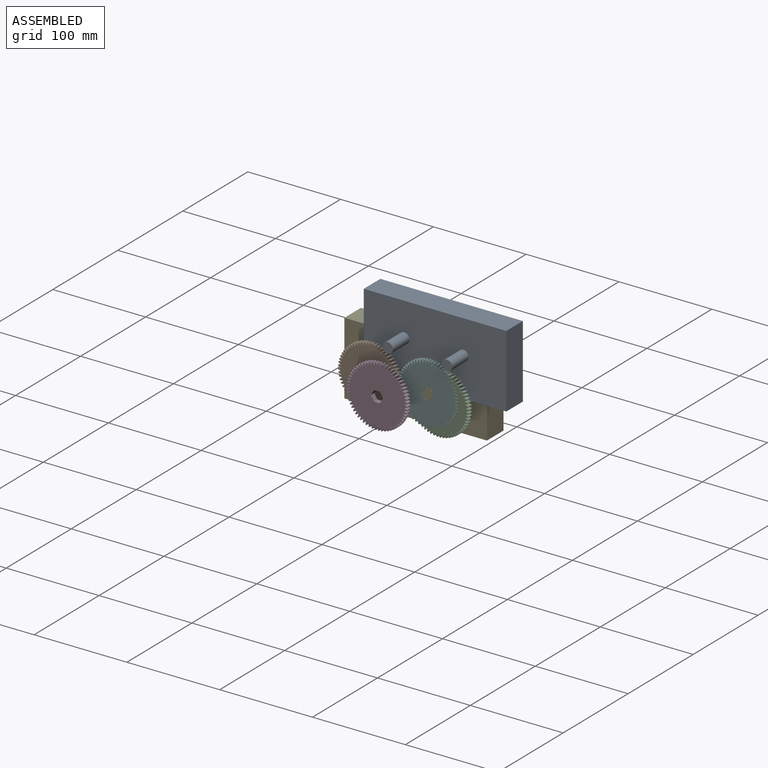
[diagram: assembled view]
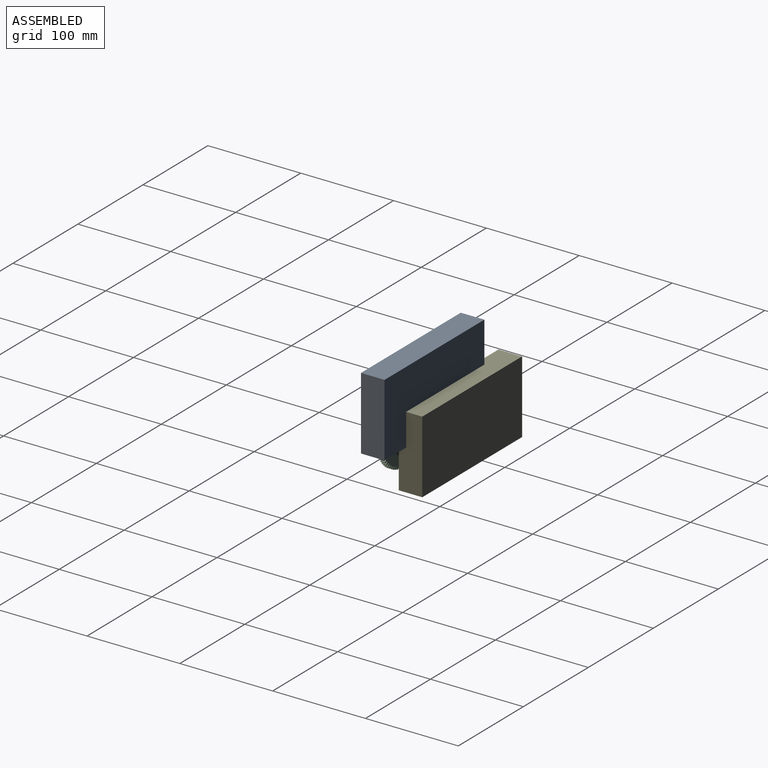
[diagram: assembled view, second angle]
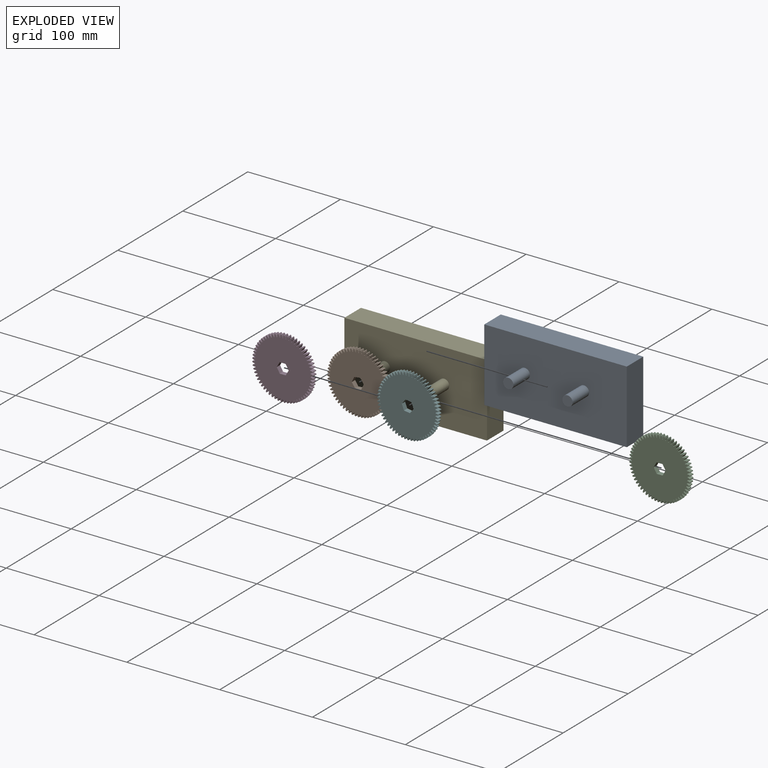
[diagram: exploded view]
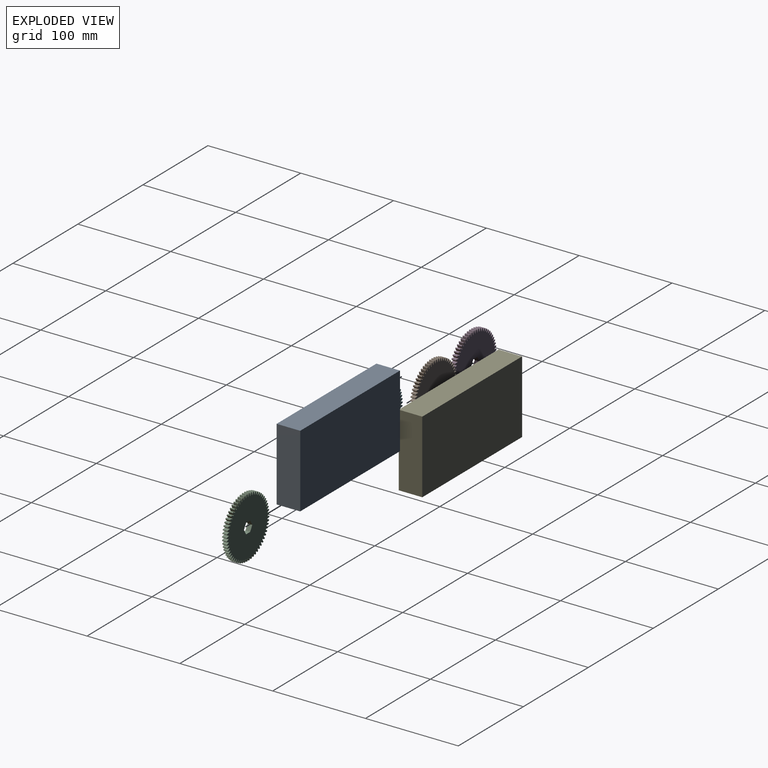
[diagram: exploded view, second angle]
ASSEMBLY  parts=3 mates=2
PART A: 368 faces, bbox 65.6x5.1x65.6 mm
  f0: extruded ~5.08x2.75mm, area 14.8mm2, adj f239,f240,f241,f242
  f1: cylinder r=29.84mm len=5.08mm, axis (0,1,0), area 1.3mm2, adj f240,f241,f242,f243
  f2: extruded ~5.08x2.75mm, area 14.8mm2, adj f3,f240,f241,f243
  f3: cylinder r=32.81mm len=5.08mm, axis (0,1,0), area 4.2mm2, adj f2,f4,f240,f241
  f4: extruded ~5.08x2.84mm, area 14.8mm2, adj f3,f240,f241,f244
  f5: cylinder r=29.84mm len=5.08mm, axis (0,1,0), area 1.3mm2, adj f240,f241,f244,f245
  f6: extruded ~5.08x2.64mm, area 14.8mm2, adj f7,f240,f241,f245
  f7: cylinder r=32.81mm len=5.08mm, axis (0,1,0), area 4.2mm2, adj f6,f8,f240,f241
  f8: extruded ~5.08x2.89mm, area 14.8mm2, adj f7,f240,f241,f246
  f9: cylinder r=29.84mm len=5.08mm, axis (0,1,0), area 1.3mm2, adj f240,f241,f246,f247
  f10: extruded ~5.08x2.49mm, area 14.8mm2, adj f11,f240,f241,f247
  f11: cylinder r=32.81mm len=5.08mm, axis (0,1,0), area 4.2mm2, adj f10,f12,f240,f241
  f12: extruded ~5.08x2.91mm, area 14.8mm2, adj f11,f240,f241,f248
  f13: cylinder r=29.84mm len=5.08mm, axis (0,1,0), area 1.3mm2, adj f240,f241,f248,f249
  f14: extruded ~5.08x2.32mm, area 14.8mm2, adj f15,f240,f241,f249
  f15: cylinder r=32.81mm len=5.08mm, axis (0,1,0), area 4.2mm2, adj f14,f16,f240,f241
  f16: extruded ~5.08x2.9mm, area 14.8mm2, adj f15,f240,f241,f250
  f17: cylinder r=29.84mm len=5.08mm, axis (0,1,0), area 1.3mm2, adj f240,f241,f250,f251
  f18: extruded ~5.08x2.13mm, area 14.8mm2, adj f19,f240,f241,f251
  f19: cylinder r=32.81mm len=5.08mm, axis (0,1,0), area 4.2mm2, adj f18,f20,f240,f241
  f20: extruded ~5.08x2.86mm, area 14.8mm2, adj f19,f240,f241,f252
  f21: cylinder r=29.84mm len=5.08mm, axis (0,1,0), area 1.3mm2, adj f240,f241,f252,f253
  f22: extruded ~5.08x2.2mm, area 14.8mm2, adj f23,f240,f241,f253
  f23: cylinder r=32.81mm len=5.08mm, axis (0,1,0), area 4.2mm2, adj f22,f24,f240,f241
  f24: extruded ~5.08x2.78mm, area 14.8mm2, adj f23,f240,f241,f254
  f25: cylinder r=29.84mm len=5.08mm, axis (0,1,0), area 1.3mm2, adj f240,f241,f254,f255
  f26: extruded ~5.08x2.38mm, area 14.8mm2, adj f27,f240,f241,f255
  f27: cylinder r=32.81mm len=5.08mm, axis (0,1,0), area 4.2mm2, adj f26,f28,f240,f241
  f28: extruded ~5.08x2.68mm, area 14.8mm2, adj f27,f240,f241,f256
  f29: cylinder r=29.84mm len=5.08mm, axis (0,1,0), area 1.3mm2, adj f240,f241,f256,f257
  f30: extruded ~5.08x2.55mm, area 14.8mm2, adj f31,f240,f241,f257
  f31: cylinder r=32.81mm len=5.08mm, axis (0,1,0), area 4.2mm2, adj f30,f32,f240,f241
  f32: extruded ~5.08x2.55mm, area 14.8mm2, adj f31,f240,f241,f258
  f33: cylinder r=29.84mm len=5.08mm, axis (0,1,0), area 1.3mm2, adj f240,f241,f258,f259
  f34: extruded ~5.08x2.68mm, area 14.8mm2, adj f35,f240,f241,f259
  f35: cylinder r=32.81mm len=5.08mm, axis (0,1,0), area 4.2mm2, adj f34,f36,f240,f241
  f36: extruded ~5.08x2.38mm, area 14.8mm2, adj f35,f240,f241,f260
  f37: cylinder r=29.84mm len=5.08mm, axis (0,1,0), area 1.3mm2, adj f240,f241,f260,f261
  f38: extruded ~5.08x2.78mm, area 14.8mm2, adj f39,f240,f241,f261
  f39: cylinder r=32.81mm len=5.08mm, axis (0,1,0), area 4.2mm2, adj f38,f40,f240,f241
  f40: extruded ~5.08x2.2mm, area 14.8mm2, adj f39,f240,f241,f262
  f41: cylinder r=29.84mm len=5.08mm, axis (0,1,0), area 1.3mm2, adj f240,f241,f262,f263
  f42: extruded ~5.08x2.86mm, area 14.8mm2, adj f43,f240,f241,f263
  f43: cylinder r=32.81mm len=5.08mm, axis (0,1,0), area 4.2mm2, adj f42,f44,f240,f241
  f44: extruded ~5.08x2.13mm, area 14.8mm2, adj f43,f240,f241,f264
  f45: cylinder r=29.84mm len=5.08mm, axis (0,1,0), area 1.3mm2, adj f240,f241,f264,f265
  f46: extruded ~5.08x2.9mm, area 14.8mm2, adj f47,f240,f241,f265
  f47: cylinder r=32.81mm len=5.08mm, axis (0,1,0), area 4.2mm2, adj f46,f48,f240,f241
  f48: extruded ~5.08x2.32mm, area 14.8mm2, adj f47,f240,f241,f266
  f49: cylinder r=29.84mm len=5.08mm, axis (0,1,0), area 1.3mm2, adj f240,f241,f266,f267
  f50: extruded ~5.08x2.91mm, area 14.8mm2, adj f51,f240,f241,f267
  f51: cylinder r=32.81mm len=5.08mm, axis (0,1,0), area 4.2mm2, adj f50,f52,f240,f241
  f52: extruded ~5.08x2.49mm, area 14.8mm2, adj f51,f240,f241,f268
  f53: cylinder r=29.84mm len=5.08mm, axis (0,1,0), area 1.3mm2, adj f240,f241,f268,f269
  f54: extruded ~5.08x2.89mm, area 14.8mm2, adj f55,f240,f241,f269
  f55: cylinder r=32.81mm len=5.08mm, axis (0,1,0), area 4.2mm2, adj f54,f56,f240,f241
  f56: extruded ~5.08x2.64mm, area 14.8mm2, adj f55,f240,f241,f270
  f57: cylinder r=29.84mm len=5.08mm, axis (0,1,0), area 1.3mm2, adj f240,f241,f270,f271
  f58: extruded ~5.08x2.84mm, area 14.8mm2, adj f59,f240,f241,f271
  f59: cylinder r=32.81mm len=5.08mm, axis (0,1,0), area 4.2mm2, adj f58,f60,f240,f241
  f60: extruded ~5.08x2.75mm, area 14.8mm2, adj f59,f240,f241,f272
  f61: cylinder r=29.84mm len=5.08mm, axis (0,1,0), area 1.3mm2, adj f240,f241,f272,f273
  f62: extruded ~5.08x2.75mm, area 14.8mm2, adj f63,f240,f241,f273
  f63: cylinder r=32.81mm len=5.08mm, axis (0,1,0), area 4.2mm2, adj f62,f64,f240,f241
  f64: extruded ~5.08x2.84mm, area 14.8mm2, adj f63,f240,f241,f274
  f65: cylinder r=29.84mm len=5.08mm, axis (0,1,0), area 1.3mm2, adj f240,f241,f274,f275
  f66: extruded ~5.08x2.64mm, area 14.8mm2, adj f67,f240,f241,f275
  f67: cylinder r=32.81mm len=5.08mm, axis (0,1,0), area 4.2mm2, adj f66,f68,f240,f241
  f68: extruded ~5.08x2.89mm, area 14.8mm2, adj f67,f240,f241,f276
  f69: cylinder r=29.84mm len=5.08mm, axis (0,1,0), area 1.3mm2, adj f240,f241,f276,f277
  f70: extruded ~5.08x2.49mm, area 14.8mm2, adj f71,f240,f241,f277
  f71: cylinder r=32.81mm len=5.08mm, axis (0,1,0), area 4.2mm2, adj f70,f72,f240,f241
  f72: extruded ~5.08x2.91mm, area 14.8mm2, adj f71,f240,f241,f278
  f73: cylinder r=29.84mm len=5.08mm, axis (0,1,0), area 1.3mm2, adj f240,f241,f278,f279
  f74: extruded ~5.08x2.32mm, area 14.8mm2, adj f75,f240,f241,f279
  f75: cylinder r=32.81mm len=5.08mm, axis (0,1,0), area 4.2mm2, adj f74,f76,f240,f241
  f76: extruded ~5.08x2.9mm, area 14.8mm2, adj f75,f240,f241,f280
  f77: cylinder r=29.84mm len=5.08mm, axis (0,1,0), area 1.3mm2, adj f240,f241,f280,f281
  f78: extruded ~5.08x2.13mm, area 14.8mm2, adj f79,f240,f241,f281
  f79: cylinder r=32.81mm len=5.08mm, axis (0,1,0), area 4.2mm2, adj f78,f80,f240,f241
  f80: extruded ~5.08x2.86mm, area 14.8mm2, adj f79,f240,f241,f282
  f81: cylinder r=29.84mm len=5.08mm, axis (0,1,0), area 1.3mm2, adj f240,f241,f282,f283
  f82: extruded ~5.08x2.2mm, area 14.8mm2, adj f83,f240,f241,f283
  f83: cylinder r=32.81mm len=5.08mm, axis (0,1,0), area 4.2mm2, adj f82,f84,f240,f241
  f84: extruded ~5.08x2.78mm, area 14.8mm2, adj f83,f240,f241,f284
  f85: cylinder r=29.84mm len=5.08mm, axis (0,1,0), area 1.3mm2, adj f240,f241,f284,f285
  f86: extruded ~5.08x2.38mm, area 14.8mm2, adj f87,f240,f241,f285
  f87: cylinder r=32.81mm len=5.08mm, axis (0,1,0), area 4.2mm2, adj f86,f88,f240,f241
  f88: extruded ~5.08x2.68mm, area 14.8mm2, adj f87,f240,f241,f286
  f89: cylinder r=29.84mm len=5.08mm, axis (0,1,0), area 1.3mm2, adj f240,f241,f286,f287
  f90: extruded ~5.08x2.55mm, area 14.8mm2, adj f91,f240,f241,f287
  f91: cylinder r=32.81mm len=5.08mm, axis (0,1,0), area 4.2mm2, adj f90,f92,f240,f241
  f92: extruded ~5.08x2.55mm, area 14.8mm2, adj f91,f240,f241,f288
  f93: cylinder r=29.84mm len=5.08mm, axis (0,1,0), area 1.3mm2, adj f240,f241,f288,f289
  f94: extruded ~5.08x2.68mm, area 14.8mm2, adj f95,f240,f241,f289
  f95: cylinder r=32.81mm len=5.08mm, axis (0,1,0), area 4.2mm2, adj f94,f96,f240,f241
  f96: extruded ~5.08x2.38mm, area 14.8mm2, adj f95,f240,f241,f290
  f97: cylinder r=29.84mm len=5.08mm, axis (0,1,0), area 1.3mm2, adj f240,f241,f290,f291
  f98: extruded ~5.08x2.78mm, area 14.8mm2, adj f99,f240,f241,f291
  f99: cylinder r=32.81mm len=5.08mm, axis (0,1,0), area 4.2mm2, adj f98,f100,f240,f241
  f100: extruded ~5.08x2.2mm, area 14.8mm2, adj f99,f240,f241,f292
  f101: cylinder r=29.84mm len=5.08mm, axis (0,1,0), area 1.3mm2, adj f240,f241,f292,f293
  f102: extruded ~5.08x2.86mm, area 14.8mm2, adj f103,f240,f241,f293
  f103: cylinder r=32.81mm len=5.08mm, axis (0,1,0), area 4.2mm2, adj f102,f104,f240,f241
  f104: extruded ~5.08x2.13mm, area 14.8mm2, adj f103,f240,f241,f294
  f105: cylinder r=29.84mm len=5.08mm, axis (0,1,0), area 1.3mm2, adj f240,f241,f294,f295
  f106: extruded ~5.08x2.9mm, area 14.8mm2, adj f107,f240,f241,f295
  f107: cylinder r=32.81mm len=5.08mm, axis (0,1,0), area 4.2mm2, adj f106,f108,f240,f241
  f108: extruded ~5.08x2.32mm, area 14.8mm2, adj f107,f240,f241,f296
  f109: cylinder r=29.84mm len=5.08mm, axis (0,1,0), area 1.3mm2, adj f240,f241,f296,f297
  f110: extruded ~5.08x2.91mm, area 14.8mm2, adj f111,f240,f241,f297
  f111: cylinder r=32.81mm len=5.08mm, axis (0,1,0), area 4.2mm2, adj f110,f112,f240,f241
  f112: extruded ~5.08x2.49mm, area 14.8mm2, adj f111,f240,f241,f298
  f113: cylinder r=29.84mm len=5.08mm, axis (0,1,0), area 1.3mm2, adj f240,f241,f298,f299
  f114: extruded ~5.08x2.89mm, area 14.8mm2, adj f115,f240,f241,f299
  f115: cylinder r=32.81mm len=5.08mm, axis (0,1,0), area 4.2mm2, adj f114,f116,f240,f241
  f116: extruded ~5.08x2.64mm, area 14.8mm2, adj f115,f240,f241,f300
  f117: cylinder r=29.84mm len=5.08mm, axis (0,1,0), area 1.3mm2, adj f240,f241,f300,f301
  f118: extruded ~5.08x2.84mm, area 14.8mm2, adj f119,f240,f241,f301
  f119: cylinder r=32.81mm len=5.08mm, axis (0,1,0), area 4.2mm2, adj f118,f120,f240,f241
  f120: extruded ~5.08x2.75mm, area 14.8mm2, adj f119,f240,f241,f302
  f121: cylinder r=29.84mm len=5.08mm, axis (0,1,0), area 1.3mm2, adj f240,f241,f302,f303
  f122: extruded ~5.08x2.75mm, area 14.8mm2, adj f123,f240,f241,f303
  f123: cylinder r=32.81mm len=5.08mm, axis (0,1,0), area 4.2mm2, adj f122,f124,f240,f241
  f124: extruded ~5.08x2.84mm, area 14.8mm2, adj f123,f240,f241,f304
  f125: cylinder r=29.84mm len=5.08mm, axis (0,1,0), area 1.3mm2, adj f240,f241,f304,f305
  f126: extruded ~5.08x2.64mm, area 14.8mm2, adj f127,f240,f241,f305
  f127: cylinder r=32.81mm len=5.08mm, axis (0,1,0), area 4.2mm2, adj f126,f128,f240,f241
  f128: extruded ~5.08x2.89mm, area 14.8mm2, adj f127,f240,f241,f306
  f129: cylinder r=29.84mm len=5.08mm, axis (0,1,0), area 1.3mm2, adj f240,f241,f306,f307
  f130: extruded ~5.08x2.49mm, area 14.8mm2, adj f131,f240,f241,f307
  f131: cylinder r=32.81mm len=5.08mm, axis (0,1,0), area 4.2mm2, adj f130,f132,f240,f241
  f132: extruded ~5.08x2.91mm, area 14.8mm2, adj f131,f240,f241,f308
  f133: cylinder r=29.84mm len=5.08mm, axis (0,1,0), area 1.3mm2, adj f240,f241,f308,f309
  f134: extruded ~5.08x2.32mm, area 14.8mm2, adj f135,f240,f241,f309
  f135: cylinder r=32.81mm len=5.08mm, axis (0,1,0), area 4.2mm2, adj f134,f136,f240,f241
  f136: extruded ~5.08x2.9mm, area 14.8mm2, adj f135,f240,f241,f310
  f137: cylinder r=29.84mm len=5.08mm, axis (0,1,0), area 1.3mm2, adj f240,f241,f310,f311
  f138: extruded ~5.08x2.13mm, area 14.8mm2, adj f139,f240,f241,f311
  f139: cylinder r=32.81mm len=5.08mm, axis (0,1,0), area 4.2mm2, adj f138,f140,f240,f241
  f140: extruded ~5.08x2.86mm, area 14.8mm2, adj f139,f240,f241,f312
  f141: cylinder r=29.84mm len=5.08mm, axis (0,1,0), area 1.3mm2, adj f240,f241,f312,f313
  f142: extruded ~5.08x2.2mm, area 14.8mm2, adj f143,f240,f241,f313
  f143: cylinder r=32.81mm len=5.08mm, axis (0,1,0), area 4.2mm2, adj f142,f144,f240,f241
  f144: extruded ~5.08x2.78mm, area 14.8mm2, adj f143,f240,f241,f314
  f145: cylinder r=29.84mm len=5.08mm, axis (0,1,0), area 1.3mm2, adj f240,f241,f314,f315
  f146: extruded ~5.08x2.38mm, area 14.8mm2, adj f147,f240,f241,f315
  f147: cylinder r=32.81mm len=5.08mm, axis (0,1,0), area 4.2mm2, adj f146,f148,f240,f241
  f148: extruded ~5.08x2.68mm, area 14.8mm2, adj f147,f240,f241,f316
  f149: cylinder r=29.84mm len=5.08mm, axis (0,1,0), area 1.3mm2, adj f240,f241,f316,f317
  f150: extruded ~5.08x2.55mm, area 14.8mm2, adj f151,f240,f241,f317
  f151: cylinder r=32.81mm len=5.08mm, axis (0,1,0), area 4.2mm2, adj f150,f152,f240,f241
  f152: extruded ~5.08x2.55mm, area 14.8mm2, adj f151,f240,f241,f318
  f153: cylinder r=29.84mm len=5.08mm, axis (0,1,0), area 1.3mm2, adj f240,f241,f318,f319
  f154: extruded ~5.08x2.68mm, area 14.8mm2, adj f155,f240,f241,f319
  f155: cylinder r=32.81mm len=5.08mm, axis (0,1,0), area 4.2mm2, adj f154,f156,f240,f241
  f156: extruded ~5.08x2.38mm, area 14.8mm2, adj f155,f240,f241,f320
  f157: cylinder r=29.84mm len=5.08mm, axis (0,1,0), area 1.3mm2, adj f240,f241,f320,f321
  f158: extruded ~5.08x2.78mm, area 14.8mm2, adj f159,f240,f241,f321
  f159: cylinder r=32.81mm len=5.08mm, axis (0,1,0), area 4.2mm2, adj f158,f160,f240,f241
  f160: extruded ~5.08x2.2mm, area 14.8mm2, adj f159,f240,f241,f322
  f161: cylinder r=29.84mm len=5.08mm, axis (0,1,0), area 1.3mm2, adj f240,f241,f322,f323
  f162: extruded ~5.08x2.86mm, area 14.8mm2, adj f163,f240,f241,f323
  f163: cylinder r=32.81mm len=5.08mm, axis (0,1,0), area 4.2mm2, adj f162,f164,f240,f241
  f164: extruded ~5.08x2.13mm, area 14.8mm2, adj f163,f240,f241,f324
  f165: cylinder r=29.84mm len=5.08mm, axis (0,1,0), area 1.3mm2, adj f240,f241,f324,f325
  f166: extruded ~5.08x2.9mm, area 14.8mm2, adj f167,f240,f241,f325
  f167: cylinder r=32.81mm len=5.08mm, axis (0,1,0), area 4.2mm2, adj f166,f168,f240,f241
  f168: extruded ~5.08x2.32mm, area 14.8mm2, adj f167,f240,f241,f326
  f169: cylinder r=29.84mm len=5.08mm, axis (0,1,0), area 1.3mm2, adj f240,f241,f326,f327
  f170: extruded ~5.08x2.91mm, area 14.8mm2, adj f171,f240,f241,f327
  f171: cylinder r=32.81mm len=5.08mm, axis (0,1,0), area 4.2mm2, adj f170,f172,f240,f241
  f172: extruded ~5.08x2.49mm, area 14.8mm2, adj f171,f240,f241,f328
  f173: cylinder r=29.84mm len=5.08mm, axis (0,1,0), area 1.3mm2, adj f240,f241,f328,f329
  f174: extruded ~5.08x2.89mm, area 14.8mm2, adj f175,f240,f241,f329
  f175: cylinder r=32.81mm len=5.08mm, axis (0,1,0), area 4.2mm2, adj f174,f176,f240,f241
  f176: extruded ~5.08x2.64mm, area 14.8mm2, adj f175,f240,f241,f330
  f177: cylinder r=29.84mm len=5.08mm, axis (0,1,0), area 1.3mm2, adj f240,f241,f330,f331
  f178: extruded ~5.08x2.84mm, area 14.8mm2, adj f179,f240,f241,f331
  f179: cylinder r=32.81mm len=5.08mm, axis (0,1,0), area 4.2mm2, adj f178,f180,f240,f241
  f180: extruded ~5.08x2.75mm, area 14.8mm2, adj f179,f240,f241,f332
  f181: cylinder r=29.84mm len=5.08mm, axis (0,1,0), area 1.3mm2, adj f240,f241,f332,f333
  f182: extruded ~5.08x2.75mm, area 14.8mm2, adj f183,f240,f241,f333
  f183: cylinder r=32.81mm len=5.08mm, axis (0,1,0), area 4.2mm2, adj f182,f184,f240,f241
  f184: extruded ~5.08x2.84mm, area 14.8mm2, adj f183,f240,f241,f334
  f185: cylinder r=29.84mm len=5.08mm, axis (0,1,0), area 1.3mm2, adj f240,f241,f334,f335
  f186: extruded ~5.08x2.64mm, area 14.8mm2, adj f187,f240,f241,f335
  f187: cylinder r=32.81mm len=5.08mm, axis (0,1,0), area 4.2mm2, adj f186,f188,f240,f241
  f188: extruded ~5.08x2.89mm, area 14.8mm2, adj f187,f240,f241,f336
  f189: cylinder r=29.84mm len=5.08mm, axis (0,1,0), area 1.3mm2, adj f240,f241,f336,f337
  f190: extruded ~5.08x2.49mm, area 14.8mm2, adj f191,f240,f241,f337
  f191: cylinder r=32.81mm len=5.08mm, axis (0,1,0), area 4.2mm2, adj f190,f192,f240,f241
  f192: extruded ~5.08x2.91mm, area 14.8mm2, adj f191,f240,f241,f338
  f193: cylinder r=29.84mm len=5.08mm, axis (0,1,0), area 1.3mm2, adj f240,f241,f338,f339
  f194: extruded ~5.08x2.32mm, area 14.8mm2, adj f195,f240,f241,f339
  f195: cylinder r=32.81mm len=5.08mm, axis (0,1,0), area 4.2mm2, adj f194,f196,f240,f241
  f196: extruded ~5.08x2.9mm, area 14.8mm2, adj f195,f240,f241,f340
  f197: cylinder r=29.84mm len=5.08mm, axis (0,1,0), area 1.3mm2, adj f240,f241,f340,f341
  f198: extruded ~5.08x2.13mm, area 14.8mm2, adj f199,f240,f241,f341
  f199: cylinder r=32.81mm len=5.08mm, axis (0,1,0), area 4.2mm2, adj f198,f200,f240,f241
  f200: extruded ~5.08x2.86mm, area 14.8mm2, adj f199,f240,f241,f342
  f201: cylinder r=29.84mm len=5.08mm, axis (0,1,0), area 1.3mm2, adj f240,f241,f342,f343
  f202: extruded ~5.08x2.2mm, area 14.8mm2, adj f203,f240,f241,f343
  f203: cylinder r=32.81mm len=5.08mm, axis (0,1,0), area 4.2mm2, adj f202,f204,f240,f241
  f204: extruded ~5.08x2.78mm, area 14.8mm2, adj f203,f240,f241,f344
  f205: cylinder r=29.84mm len=5.08mm, axis (0,1,0), area 1.3mm2, adj f240,f241,f344,f345
  f206: extruded ~5.08x2.38mm, area 14.8mm2, adj f207,f240,f241,f345
  f207: cylinder r=32.81mm len=5.08mm, axis (0,1,0), area 4.2mm2, adj f206,f208,f240,f241
  f208: extruded ~5.08x2.68mm, area 14.8mm2, adj f207,f240,f241,f346
  f209: cylinder r=29.84mm len=5.08mm, axis (0,1,0), area 1.3mm2, adj f240,f241,f346,f347
  f210: extruded ~5.08x2.55mm, area 14.8mm2, adj f211,f240,f241,f347
  f211: cylinder r=32.81mm len=5.08mm, axis (0,1,0), area 4.2mm2, adj f210,f212,f240,f241
  f212: extruded ~5.08x2.55mm, area 14.8mm2, adj f211,f240,f241,f348
  f213: cylinder r=29.84mm len=5.08mm, axis (0,1,0), area 1.3mm2, adj f240,f241,f348,f349
  f214: extruded ~5.08x2.68mm, area 14.8mm2, adj f215,f240,f241,f349
  f215: cylinder r=32.81mm len=5.08mm, axis (0,1,0), area 4.2mm2, adj f214,f216,f240,f241
  f216: extruded ~5.08x2.38mm, area 14.8mm2, adj f215,f240,f241,f350
  f217: cylinder r=29.84mm len=5.08mm, axis (0,1,0), area 1.3mm2, adj f240,f241,f350,f351
  f218: extruded ~5.08x2.78mm, area 14.8mm2, adj f219,f240,f241,f351
  f219: cylinder r=32.81mm len=5.08mm, axis (0,1,0), area 4.2mm2, adj f218,f220,f240,f241
  f220: extruded ~5.08x2.2mm, area 14.8mm2, adj f219,f240,f241,f352
  f221: cylinder r=29.84mm len=5.08mm, axis (0,1,0), area 1.3mm2, adj f240,f241,f352,f353
  f222: extruded ~5.08x2.86mm, area 14.8mm2, adj f223,f240,f241,f353
  f223: cylinder r=32.81mm len=5.08mm, axis (0,1,0), area 4.2mm2, adj f222,f224,f240,f241
  f224: extruded ~5.08x2.13mm, area 14.8mm2, adj f223,f240,f241,f354
  f225: cylinder r=29.84mm len=5.08mm, axis (0,1,0), area 1.3mm2, adj f240,f241,f354,f355
  f226: extruded ~5.08x2.9mm, area 14.8mm2, adj f227,f240,f241,f355
  f227: cylinder r=32.81mm len=5.08mm, axis (0,1,0), area 4.2mm2, adj f226,f228,f240,f241
  f228: extruded ~5.08x2.32mm, area 14.8mm2, adj f227,f240,f241,f356
  f229: cylinder r=29.84mm len=5.08mm, axis (0,1,0), area 1.3mm2, adj f240,f241,f356,f357
  f230: extruded ~5.08x2.91mm, area 14.8mm2, adj f231,f240,f241,f357
  f231: cylinder r=32.81mm len=5.08mm, axis (0,1,0), area 4.2mm2, adj f230,f232,f240,f241
  f232: extruded ~5.08x2.49mm, area 14.8mm2, adj f231,f240,f241,f358
  f233: cylinder r=29.84mm len=5.08mm, axis (0,1,0), area 1.3mm2, adj f240,f241,f358,f359
  f234: extruded ~5.08x2.89mm, area 14.8mm2, adj f235,f240,f241,f359
  f235: cylinder r=32.81mm len=5.08mm, axis (0,1,0), area 4.2mm2, adj f234,f236,f240,f241
  f236: extruded ~5.08x2.64mm, area 14.8mm2, adj f235,f240,f241,f360
  f237: cylinder r=29.84mm len=5.08mm, axis (0,1,0), area 1.3mm2, adj f240,f241,f360,f361
  f238: extruded ~5.08x2.84mm, area 14.8mm2, adj f239,f240,f241,f361
  f239: cylinder r=32.81mm len=5.08mm, axis (0,1,0), area 4.2mm2, adj f0,f238,f240,f241
  f240: plane 65.57x65.57mm, normal (0,-1,0), area 3018.5mm2, adj f0,f1,f2,f3,f4,f5,f6,f7
  f241: plane 65.57x65.57mm, normal (0,1,0), area 3018.5mm2, adj f0,f1,f2,f3,f4,f5,f6,f7
  f242: cylinder r=0.22mm len=5.08mm, axis (0,1,0), area 1.7mm2, adj f0,f1,f240,f241
  f243: cylinder r=0.22mm len=5.08mm, axis (0,1,0), area 1.7mm2, adj f1,f2,f240,f241
  f244: cylinder r=0.22mm len=5.08mm, axis (0,1,0), area 1.7mm2, adj f4,f5,f240,f241
  f245: cylinder r=0.22mm len=5.08mm, axis (0,1,0), area 1.7mm2, adj f5,f6,f240,f241
  f246: cylinder r=0.22mm len=5.08mm, axis (0,1,0), area 1.7mm2, adj f8,f9,f240,f241
  f247: cylinder r=0.22mm len=5.08mm, axis (0,1,0), area 1.7mm2, adj f9,f10,f240,f241
  f248: cylinder r=0.22mm len=5.08mm, axis (0,1,0), area 1.7mm2, adj f12,f13,f240,f241
  f249: cylinder r=0.22mm len=5.08mm, axis (0,1,0), area 1.7mm2, adj f13,f14,f240,f241
  f250: cylinder r=0.22mm len=5.08mm, axis (0,1,0), area 1.7mm2, adj f16,f17,f240,f241
  f251: cylinder r=0.22mm len=5.08mm, axis (0,1,0), area 1.7mm2, adj f17,f18,f240,f241
  f252: cylinder r=0.22mm len=5.08mm, axis (0,1,0), area 1.7mm2, adj f20,f21,f240,f241
  f253: cylinder r=0.22mm len=5.08mm, axis (0,1,0), area 1.7mm2, adj f21,f22,f240,f241
  f254: cylinder r=0.22mm len=5.08mm, axis (0,1,0), area 1.7mm2, adj f24,f25,f240,f241
  f255: cylinder r=0.22mm len=5.08mm, axis (0,1,0), area 1.7mm2, adj f25,f26,f240,f241
  f256: cylinder r=0.22mm len=5.08mm, axis (0,1,0), area 1.7mm2, adj f28,f29,f240,f241
  f257: cylinder r=0.22mm len=5.08mm, axis (0,1,0), area 1.7mm2, adj f29,f30,f240,f241
  f258: cylinder r=0.22mm len=5.08mm, axis (0,1,0), area 1.7mm2, adj f32,f33,f240,f241
  f259: cylinder r=0.22mm len=5.08mm, axis (0,1,0), area 1.7mm2, adj f33,f34,f240,f241
  f260: cylinder r=0.22mm len=5.08mm, axis (0,1,0), area 1.7mm2, adj f36,f37,f240,f241
  f261: cylinder r=0.22mm len=5.08mm, axis (0,1,0), area 1.7mm2, adj f37,f38,f240,f241
  f262: cylinder r=0.22mm len=5.08mm, axis (0,1,0), area 1.7mm2, adj f40,f41,f240,f241
  f263: cylinder r=0.22mm len=5.08mm, axis (0,1,0), area 1.7mm2, adj f41,f42,f240,f241
  f264: cylinder r=0.22mm len=5.08mm, axis (0,1,0), area 1.7mm2, adj f44,f45,f240,f241
  f265: cylinder r=0.22mm len=5.08mm, axis (0,1,0), area 1.7mm2, adj f45,f46,f240,f241
  f266: cylinder r=0.22mm len=5.08mm, axis (0,1,0), area 1.7mm2, adj f48,f49,f240,f241
  f267: cylinder r=0.22mm len=5.08mm, axis (0,1,0), area 1.7mm2, adj f49,f50,f240,f241
  f268: cylinder r=0.22mm len=5.08mm, axis (0,1,0), area 1.7mm2, adj f52,f53,f240,f241
  f269: cylinder r=0.22mm len=5.08mm, axis (0,1,0), area 1.7mm2, adj f53,f54,f240,f241
  f270: cylinder r=0.22mm len=5.08mm, axis (0,1,0), area 1.7mm2, adj f56,f57,f240,f241
  f271: cylinder r=0.22mm len=5.08mm, axis (0,1,0), area 1.7mm2, adj f57,f58,f240,f241
  f272: cylinder r=0.22mm len=5.08mm, axis (0,1,0), area 1.7mm2, adj f60,f61,f240,f241
  f273: cylinder r=0.22mm len=5.08mm, axis (0,1,0), area 1.7mm2, adj f61,f62,f240,f241
  f274: cylinder r=0.22mm len=5.08mm, axis (0,1,0), area 1.7mm2, adj f64,f65,f240,f241
  f275: cylinder r=0.22mm len=5.08mm, axis (0,1,0), area 1.7mm2, adj f65,f66,f240,f241
  f276: cylinder r=0.22mm len=5.08mm, axis (0,1,0), area 1.7mm2, adj f68,f69,f240,f241
  f277: cylinder r=0.22mm len=5.08mm, axis (0,1,0), area 1.7mm2, adj f69,f70,f240,f241
  f278: cylinder r=0.22mm len=5.08mm, axis (0,1,0), area 1.7mm2, adj f72,f73,f240,f241
  f279: cylinder r=0.22mm len=5.08mm, axis (0,1,0), area 1.7mm2, adj f73,f74,f240,f241
  f280: cylinder r=0.22mm len=5.08mm, axis (0,1,0), area 1.7mm2, adj f76,f77,f240,f241
  f281: cylinder r=0.22mm len=5.08mm, axis (0,1,0), area 1.7mm2, adj f77,f78,f240,f241
  f282: cylinder r=0.22mm len=5.08mm, axis (0,1,0), area 1.7mm2, adj f80,f81,f240,f241
  f283: cylinder r=0.22mm len=5.08mm, axis (0,1,0), area 1.7mm2, adj f81,f82,f240,f241
  f284: cylinder r=0.22mm len=5.08mm, axis (0,1,0), area 1.7mm2, adj f84,f85,f240,f241
  f285: cylinder r=0.22mm len=5.08mm, axis (0,1,0), area 1.7mm2, adj f85,f86,f240,f241
  f286: cylinder r=0.22mm len=5.08mm, axis (0,1,0), area 1.7mm2, adj f88,f89,f240,f241
  f287: cylinder r=0.22mm len=5.08mm, axis (0,1,0), area 1.7mm2, adj f89,f90,f240,f241
  f288: cylinder r=0.22mm len=5.08mm, axis (0,1,0), area 1.7mm2, adj f92,f93,f240,f241
  f289: cylinder r=0.22mm len=5.08mm, axis (0,1,0), area 1.7mm2, adj f93,f94,f240,f241
  f290: cylinder r=0.22mm len=5.08mm, axis (0,1,0), area 1.7mm2, adj f96,f97,f240,f241
  f291: cylinder r=0.22mm len=5.08mm, axis (0,1,0), area 1.7mm2, adj f97,f98,f240,f241
  f292: cylinder r=0.22mm len=5.08mm, axis (0,1,0), area 1.7mm2, adj f100,f101,f240,f241
  f293: cylinder r=0.22mm len=5.08mm, axis (0,1,0), area 1.7mm2, adj f101,f102,f240,f241
  f294: cylinder r=0.22mm len=5.08mm, axis (0,1,0), area 1.7mm2, adj f104,f105,f240,f241
  f295: cylinder r=0.22mm len=5.08mm, axis (0,1,0), area 1.7mm2, adj f105,f106,f240,f241
  f296: cylinder r=0.22mm len=5.08mm, axis (0,1,0), area 1.7mm2, adj f108,f109,f240,f241
  f297: cylinder r=0.22mm len=5.08mm, axis (0,1,0), area 1.7mm2, adj f109,f110,f240,f241
  f298: cylinder r=0.22mm len=5.08mm, axis (0,1,0), area 1.7mm2, adj f112,f113,f240,f241
  f299: cylinder r=0.22mm len=5.08mm, axis (0,1,0), area 1.7mm2, adj f113,f114,f240,f241
  f300: cylinder r=0.22mm len=5.08mm, axis (0,1,0), area 1.7mm2, adj f116,f117,f240,f241
  f301: cylinder r=0.22mm len=5.08mm, axis (0,1,0), area 1.7mm2, adj f117,f118,f240,f241
  f302: cylinder r=0.22mm len=5.08mm, axis (0,1,0), area 1.7mm2, adj f120,f121,f240,f241
  f303: cylinder r=0.22mm len=5.08mm, axis (0,1,0), area 1.7mm2, adj f121,f122,f240,f241
  f304: cylinder r=0.22mm len=5.08mm, axis (0,1,0), area 1.7mm2, adj f124,f125,f240,f241
  f305: cylinder r=0.22mm len=5.08mm, axis (0,1,0), area 1.7mm2, adj f125,f126,f240,f241
  f306: cylinder r=0.22mm len=5.08mm, axis (0,1,0), area 1.7mm2, adj f128,f129,f240,f241
  f307: cylinder r=0.22mm len=5.08mm, axis (0,1,0), area 1.7mm2, adj f129,f130,f240,f241
  f308: cylinder r=0.22mm len=5.08mm, axis (0,1,0), area 1.7mm2, adj f132,f133,f240,f241
  f309: cylinder r=0.22mm len=5.08mm, axis (0,1,0), area 1.7mm2, adj f133,f134,f240,f241
  f310: cylinder r=0.22mm len=5.08mm, axis (0,1,0), area 1.7mm2, adj f136,f137,f240,f241
  f311: cylinder r=0.22mm len=5.08mm, axis (0,1,0), area 1.7mm2, adj f137,f138,f240,f241
  f312: cylinder r=0.22mm len=5.08mm, axis (0,1,0), area 1.7mm2, adj f140,f141,f240,f241
  f313: cylinder r=0.22mm len=5.08mm, axis (0,1,0), area 1.7mm2, adj f141,f142,f240,f241
  f314: cylinder r=0.22mm len=5.08mm, axis (0,1,0), area 1.7mm2, adj f144,f145,f240,f241
  f315: cylinder r=0.22mm len=5.08mm, axis (0,1,0), area 1.7mm2, adj f145,f146,f240,f241
  f316: cylinder r=0.22mm len=5.08mm, axis (0,1,0), area 1.7mm2, adj f148,f149,f240,f241
  f317: cylinder r=0.22mm len=5.08mm, axis (0,1,0), area 1.7mm2, adj f149,f150,f240,f241
  f318: cylinder r=0.22mm len=5.08mm, axis (0,1,0), area 1.7mm2, adj f152,f153,f240,f241
  f319: cylinder r=0.22mm len=5.08mm, axis (0,1,0), area 1.7mm2, adj f153,f154,f240,f241
  f320: cylinder r=0.22mm len=5.08mm, axis (0,1,0), area 1.7mm2, adj f156,f157,f240,f241
  f321: cylinder r=0.22mm len=5.08mm, axis (0,1,0), area 1.7mm2, adj f157,f158,f240,f241
  f322: cylinder r=0.22mm len=5.08mm, axis (0,1,0), area 1.7mm2, adj f160,f161,f240,f241
  f323: cylinder r=0.22mm len=5.08mm, axis (0,1,0), area 1.7mm2, adj f161,f162,f240,f241
  f324: cylinder r=0.22mm len=5.08mm, axis (0,1,0), area 1.7mm2, adj f164,f165,f240,f241
  f325: cylinder r=0.22mm len=5.08mm, axis (0,1,0), area 1.7mm2, adj f165,f166,f240,f241
  f326: cylinder r=0.22mm len=5.08mm, axis (0,1,0), area 1.7mm2, adj f168,f169,f240,f241
  f327: cylinder r=0.22mm len=5.08mm, axis (0,1,0), area 1.7mm2, adj f169,f170,f240,f241
  f328: cylinder r=0.22mm len=5.08mm, axis (0,1,0), area 1.7mm2, adj f172,f173,f240,f241
  f329: cylinder r=0.22mm len=5.08mm, axis (0,1,0), area 1.7mm2, adj f173,f174,f240,f241
  f330: cylinder r=0.22mm len=5.08mm, axis (0,1,0), area 1.7mm2, adj f176,f177,f240,f241
  f331: cylinder r=0.22mm len=5.08mm, axis (0,1,0), area 1.7mm2, adj f177,f178,f240,f241
  f332: cylinder r=0.22mm len=5.08mm, axis (0,1,0), area 1.7mm2, adj f180,f181,f240,f241
  f333: cylinder r=0.22mm len=5.08mm, axis (0,1,0), area 1.7mm2, adj f181,f182,f240,f241
  f334: cylinder r=0.22mm len=5.08mm, axis (0,1,0), area 1.7mm2, adj f184,f185,f240,f241
  f335: cylinder r=0.22mm len=5.08mm, axis (0,1,0), area 1.7mm2, adj f185,f186,f240,f241
  f336: cylinder r=0.22mm len=5.08mm, axis (0,1,0), area 1.7mm2, adj f188,f189,f240,f241
  f337: cylinder r=0.22mm len=5.08mm, axis (0,1,0), area 1.7mm2, adj f189,f190,f240,f241
  f338: cylinder r=0.22mm len=5.08mm, axis (0,1,0), area 1.7mm2, adj f192,f193,f240,f241
  f339: cylinder r=0.22mm len=5.08mm, axis (0,1,0), area 1.7mm2, adj f193,f194,f240,f241
  f340: cylinder r=0.22mm len=5.08mm, axis (0,1,0), area 1.7mm2, adj f196,f197,f240,f241
  f341: cylinder r=0.22mm len=5.08mm, axis (0,1,0), area 1.7mm2, adj f197,f198,f240,f241
  f342: cylinder r=0.22mm len=5.08mm, axis (0,1,0), area 1.7mm2, adj f200,f201,f240,f241
  f343: cylinder r=0.22mm len=5.08mm, axis (0,1,0), area 1.7mm2, adj f201,f202,f240,f241
  f344: cylinder r=0.22mm len=5.08mm, axis (0,1,0), area 1.7mm2, adj f204,f205,f240,f241
  f345: cylinder r=0.22mm len=5.08mm, axis (0,1,0), area 1.7mm2, adj f205,f206,f240,f241
  f346: cylinder r=0.22mm len=5.08mm, axis (0,1,0), area 1.7mm2, adj f208,f209,f240,f241
  f347: cylinder r=0.22mm len=5.08mm, axis (0,1,0), area 1.7mm2, adj f209,f210,f240,f241
  f348: cylinder r=0.22mm len=5.08mm, axis (0,1,0), area 1.7mm2, adj f212,f213,f240,f241
  f349: cylinder r=0.22mm len=5.08mm, axis (0,1,0), area 1.7mm2, adj f213,f214,f240,f241
  f350: cylinder r=0.22mm len=5.08mm, axis (0,1,0), area 1.7mm2, adj f216,f217,f240,f241
  f351: cylinder r=0.22mm len=5.08mm, axis (0,1,0), area 1.7mm2, adj f217,f218,f240,f241
  f352: cylinder r=0.22mm len=5.08mm, axis (0,1,0), area 1.7mm2, adj f220,f221,f240,f241
  f353: cylinder r=0.22mm len=5.08mm, axis (0,1,0), area 1.7mm2, adj f221,f222,f240,f241
  f354: cylinder r=0.22mm len=5.08mm, axis (0,1,0), area 1.7mm2, adj f224,f225,f240,f241
  f355: cylinder r=0.22mm len=5.08mm, axis (0,1,0), area 1.7mm2, adj f225,f226,f240,f241
  f356: cylinder r=0.22mm len=5.08mm, axis (0,1,0), area 1.7mm2, adj f228,f229,f240,f241
  f357: cylinder r=0.22mm len=5.08mm, axis (0,1,0), area 1.7mm2, adj f229,f230,f240,f241
  f358: cylinder r=0.22mm len=5.08mm, axis (0,1,0), area 1.7mm2, adj f232,f233,f240,f241
  f359: cylinder r=0.22mm len=5.08mm, axis (0,1,0), area 1.7mm2, adj f233,f234,f240,f241
  f360: cylinder r=0.22mm len=5.08mm, axis (0,1,0), area 1.7mm2, adj f236,f237,f240,f241
  f361: cylinder r=0.22mm len=5.08mm, axis (0,1,0), area 1.7mm2, adj f237,f238,f240,f241
  f362: plane 5.56x5.08mm, normal (0.87,0,0.5), area 32.6mm2, adj f240,f241,f363,f367
  f363: plane 6.42x5.08mm, normal (0,0,1), area 32.6mm2, adj f240,f241,f362,f364
  f364: plane 5.56x5.08mm, normal (-0.87,0,0.5), area 32.6mm2, adj f240,f241,f363,f365
  f365: plane 5.56x5.08mm, normal (-0.87,0,-0.5), area 32.6mm2, adj f240,f241,f364,f366
  f366: plane 6.42x5.08mm, normal (0,0,-1), area 32.6mm2, adj f240,f241,f365,f367
  f367: plane 5.56x5.08mm, normal (0.87,0,-0.5), area 32.6mm2, adj f240,f241,f362,f366
PART B: 10 faces, bbox 153.5x50.8x78.5 mm
  f0: plane 153.55x25.4mm, normal (0,0,1), area 3900mm2, adj f1,f3,f4,f5
  f1: plane 78.49x25.4mm, normal (-1,0,0), area 1993.6mm2, adj f0,f2,f4,f5
  f2: plane 153.55x25.4mm, normal (0,0,-1), area 3900mm2, adj f1,f3,f4,f5
  f3: plane 78.49x25.4mm, normal (1,0,0), area 1993.6mm2, adj f0,f2,f4,f5
  f4: plane 153.55x78.49mm, normal (0,-1,0), area 11857.4mm2, adj f0,f1,f2,f3,f6,f8
  f5: plane 153.55x78.49mm, normal (0,1,0), area 12051.4mm2, adj f0,f1,f2,f3
  f6: cylinder r=5.56mm len=25.4mm, axis (0,1,0), area 886.7mm2, adj f4,f7
  f7: plane 11.11x11.11mm, normal (0,-1,0), area 97mm2, adj f6
  f8: cylinder r=5.56mm len=25.4mm, axis (0,1,0), area 886.7mm2, adj f4,f9
  f9: plane 11.11x11.11mm, normal (0,-1,0), area 97mm2, adj f8
PART C: same geometry as A
PLACE A rot(axis=(0,1,0),55.7deg) t=(-10.71,34.88,-13.9)mm
PLACE B t=(-54.35,80.6,-56.23)mm fixed
PLACE C rot(axis=(0,-1,0),111.4deg) t=(53.04,34.88,-13.9)mm
MATE revolute A.f3 <-> B.f6  axis (0,-1,0) through (-10.71,29.8,-13.9)mm
MATE revolute B.f8 <-> C.f3  axis (0,-1,0) through (53.04,29.8,-13.9)mm
